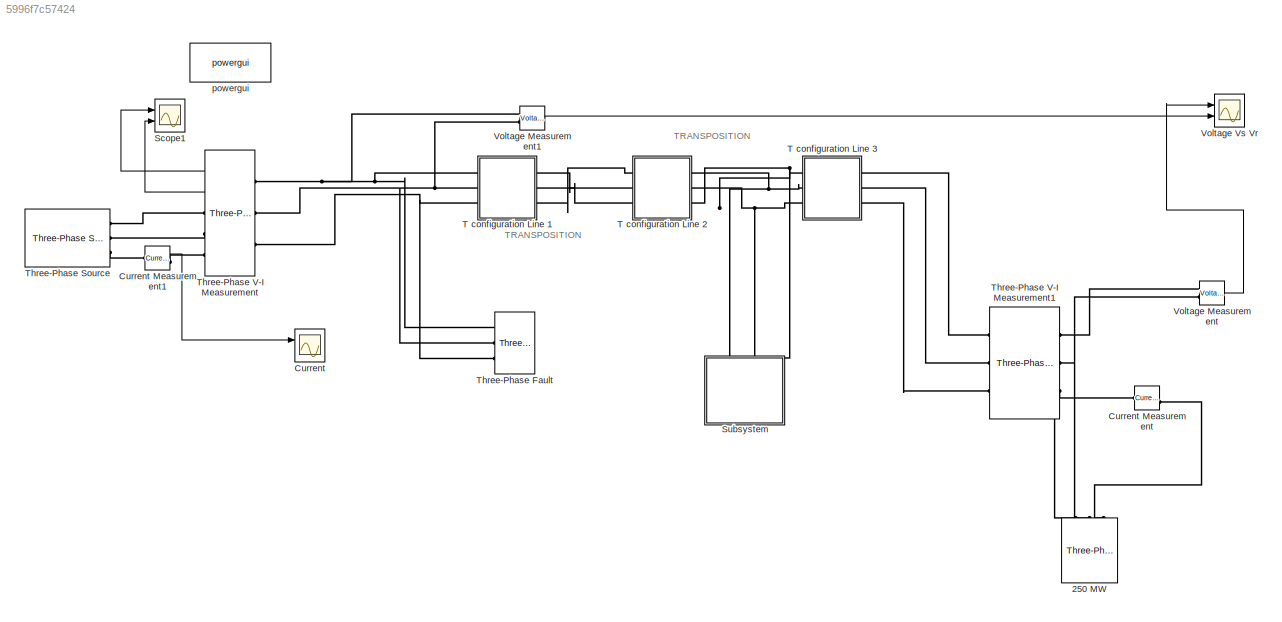
MODEL slx_5996f7c57424
KIND model
CONFIG AbsTol = auto
CONFIG EnableMultiTasking = off
CONFIG FixedStep = auto
CONFIG MaxStep = auto
CONFIG MinStep = auto
CONFIG RelTol = 1e-3
CONFIG SampleTimeConstraint = Unconstrained
CONFIG Solver = VariableStepAuto
CONFIG SolverName = VariableStepAuto
CONFIG StartTime = 0.0
CONFIG StopTime = 1.5
BLOCK [Reference] 250 MW  REF=powerlib/Elements/Three-Phase
Series RLC Load
  AttributesFormatString = \n
  Ports = [0, 0, 0, 0, 0, 3]
  SourceBlock = powerlib/Elements/Three-Phase\nSeries RLC Load
  SourceProductBaseCode = PS
  SourceProductName = Simscape Electrical
  SourceType = Three-Phase Series RLC Load
BLOCK [Scope] Current 
  Floating = off
  NumInputPorts = 2
  Ports = [2]
  ScopeSpecificationString = Simulink.scopes.TimeScopeBlockCfg('CurrentConfiguration', extmgr.ConfigurationSet(extmgr.Configuration('Core','General UI',true),extmgr.Configuration('Core','Source UI',true),extmgr.Configuration('Sources','WiredSimulink',true,'DataLoggingVariableName','ScopeData2'),extmgr.Configuration('Visuals','Time Domain',true,'SerializedDisplays',{struct('MinYLimReal','-663.16166','MaxYLimReal','663.16302','...<+1514ch>
BLOCK [Reference] Current Measurement  REF=powerlib/Measurements/Current Measurement
  Ports = [0, 1, 0, 0, 0, 1, 1]
  SourceBlock = powerlib/Measurements/Current Measurement
  SourceProductBaseCode = PS
  SourceProductName = Simscape Electrical
  SourceType = Current Measurement
  UserDataPersistent = on
BLOCK [Reference] Current Measurement1  REF=powerlib/Measurements/Current Measurement
  Ports = [0, 1, 0, 0, 0, 1, 1]
  SourceBlock = powerlib/Measurements/Current Measurement
  SourceProductBaseCode = PS
  SourceProductName = Simscape Electrical
  SourceType = Current Measurement
  UserDataPersistent = on
BLOCK [Scope] Scope1
  Floating = off
  NumInputPorts = 2
  Ports = [2]
  ScopeSpecificationString = Simulink.scopes.TimeScopeBlockCfg('CurrentConfiguration', extmgr.ConfigurationSet(extmgr.Configuration('Core','General UI',true),extmgr.Configuration('Core','Source UI',true),extmgr.Configuration('Sources','WiredSimulink',true,'DataLoggingVariableName','ScopeData1'),extmgr.Configuration('Visuals','Time Domain',true,'SerializedDisplays',{struct('MinYLimReal','-93438.31046','MaxYLimReal','93198.1279...<+1697ch>
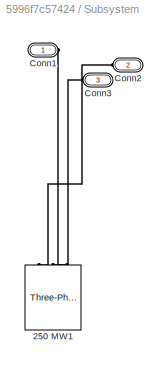
BLOCK [SubSystem] Subsystem
  Ports = [0, 0, 0, 0, 0, 3]
  RequestExecContextInheritance = off
BLOCK [Reference] Subsystem/250 MW1  REF=powerlib/Elements/Three-Phase
Series RLC Load
  AttributesFormatString = \n
  Ports = [0, 0, 0, 0, 0, 3]
  SourceBlock = powerlib/Elements/Three-Phase\nSeries RLC Load
  SourceProductBaseCode = PS
  SourceProductName = Simscape Electrical
  SourceType = Three-Phase Series RLC Load
BLOCK [PMIOPort] Subsystem/Conn1
  Side = Left
BLOCK [PMIOPort] Subsystem/Conn2
  Port = 2
  Side = Left
BLOCK [PMIOPort] Subsystem/Conn3
  Port = 3
  Side = Left
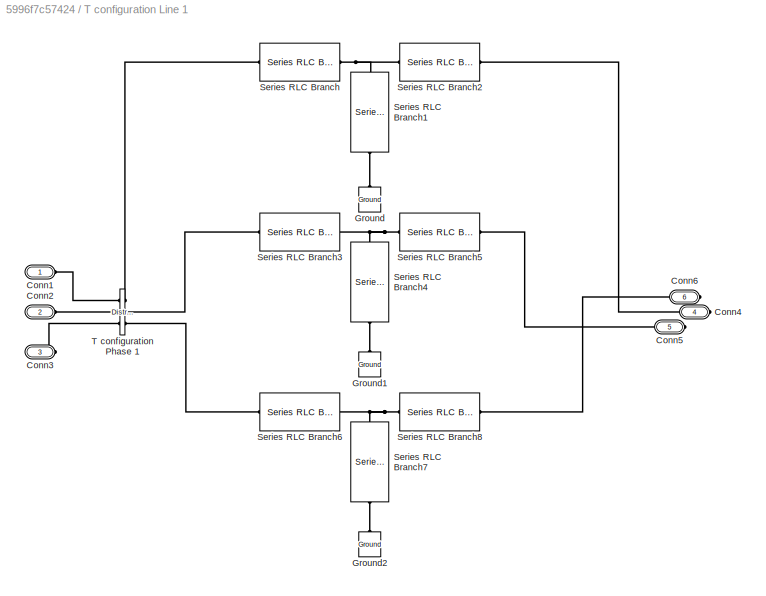
BLOCK [SubSystem] T configuration Line 1
  Ports = [0, 0, 0, 0, 0, 3, 3]
  RequestExecContextInheritance = off
BLOCK [PMIOPort] T configuration Line 1/Conn1
  Side = Left
BLOCK [PMIOPort] T configuration Line 1/Conn2
  Port = 2
  Side = Left
BLOCK [PMIOPort] T configuration Line 1/Conn3
  Port = 3
  Side = Left
BLOCK [PMIOPort] T configuration Line 1/Conn4
  Port = 4
  Side = Right
BLOCK [PMIOPort] T configuration Line 1/Conn5
  Port = 5
  Side = Right
BLOCK [PMIOPort] T configuration Line 1/Conn6
  Port = 6
  Side = Right
BLOCK [Reference] T configuration Line 1/Ground  REF=powerlib/Elements/Ground
  Ports = [0, 0, 0, 0, 0, 1]
  SourceBlock = powerlib/Elements/Ground
  SourceProductBaseCode = PS
  SourceProductName = Simscape Electrical
  SourceType = Ground
BLOCK [Reference] T configuration Line 1/Ground1  REF=powerlib/Elements/Ground
  Ports = [0, 0, 0, 0, 0, 1]
  SourceBlock = powerlib/Elements/Ground
  SourceProductBaseCode = PS
  SourceProductName = Simscape Electrical
  SourceType = Ground
BLOCK [Reference] T configuration Line 1/Ground2  REF=powerlib/Elements/Ground
  Ports = [0, 0, 0, 0, 0, 1]
  SourceBlock = powerlib/Elements/Ground
  SourceProductBaseCode = PS
  SourceProductName = Simscape Electrical
  SourceType = Ground
BLOCK [Reference] T configuration Line 1/Series RLC Branch  REF=powerlib/Elements/Series RLC Branch
  Ports = [0, 0, 0, 0, 0, 1, 1]
  SourceBlock = powerlib/Elements/Series RLC Branch
  SourceProductBaseCode = PS
  SourceProductName = Simscape Electrical
  SourceType = Series RLC Branch
BLOCK [Reference] T configuration Line 1/Series RLC Branch1  REF=powerlib/Elements/Series RLC Branch
  Ports = [0, 0, 0, 0, 0, 1, 1]
  SourceBlock = powerlib/Elements/Series RLC Branch
  SourceProductBaseCode = PS
  SourceProductName = Simscape Electrical
  SourceType = Series RLC Branch
BLOCK [Reference] T configuration Line 1/Series RLC Branch2  REF=powerlib/Elements/Series RLC Branch
  Ports = [0, 0, 0, 0, 0, 1, 1]
  SourceBlock = powerlib/Elements/Series RLC Branch
  SourceProductBaseCode = PS
  SourceProductName = Simscape Electrical
  SourceType = Series RLC Branch
BLOCK [Reference] T configuration Line 1/Series RLC Branch3  REF=powerlib/Elements/Series RLC Branch
  Ports = [0, 0, 0, 0, 0, 1, 1]
  SourceBlock = powerlib/Elements/Series RLC Branch
  SourceProductBaseCode = PS
  SourceProductName = Simscape Electrical
  SourceType = Series RLC Branch
BLOCK [Reference] T configuration Line 1/Series RLC Branch4  REF=powerlib/Elements/Series RLC Branch
  Ports = [0, 0, 0, 0, 0, 1, 1]
  SourceBlock = powerlib/Elements/Series RLC Branch
  SourceProductBaseCode = PS
  SourceProductName = Simscape Electrical
  SourceType = Series RLC Branch
BLOCK [Reference] T configuration Line 1/Series RLC Branch5  REF=powerlib/Elements/Series RLC Branch
  Ports = [0, 0, 0, 0, 0, 1, 1]
  SourceBlock = powerlib/Elements/Series RLC Branch
  SourceProductBaseCode = PS
  SourceProductName = Simscape Electrical
  SourceType = Series RLC Branch
BLOCK [Reference] T configuration Line 1/Series RLC Branch6  REF=powerlib/Elements/Series RLC Branch
  Ports = [0, 0, 0, 0, 0, 1, 1]
  SourceBlock = powerlib/Elements/Series RLC Branch
  SourceProductBaseCode = PS
  SourceProductName = Simscape Electrical
  SourceType = Series RLC Branch
BLOCK [Reference] T configuration Line 1/Series RLC Branch7  REF=powerlib/Elements/Series RLC Branch
  Ports = [0, 0, 0, 0, 0, 1, 1]
  SourceBlock = powerlib/Elements/Series RLC Branch
  SourceProductBaseCode = PS
  SourceProductName = Simscape Electrical
  SourceType = Series RLC Branch
BLOCK [Reference] T configuration Line 1/Series RLC Branch8  REF=powerlib/Elements/Series RLC Branch
  Ports = [0, 0, 0, 0, 0, 1, 1]
  SourceBlock = powerlib/Elements/Series RLC Branch
  SourceProductBaseCode = PS
  SourceProductName = Simscape Electrical
  SourceType = Series RLC Branch
BLOCK [Reference] T configuration Line 1/T configuration Phase 1  REF=powerlib/Elements/Distributed Parameters Line
  Ports = [0, 0, 0, 0, 0, 3, 3]
  SourceBlock = powerlib/Elements/Distributed Parameters Line
  SourceProductBaseCode = PS
  SourceProductName = Simscape Electrical
  SourceType = Distributed Parameters Line
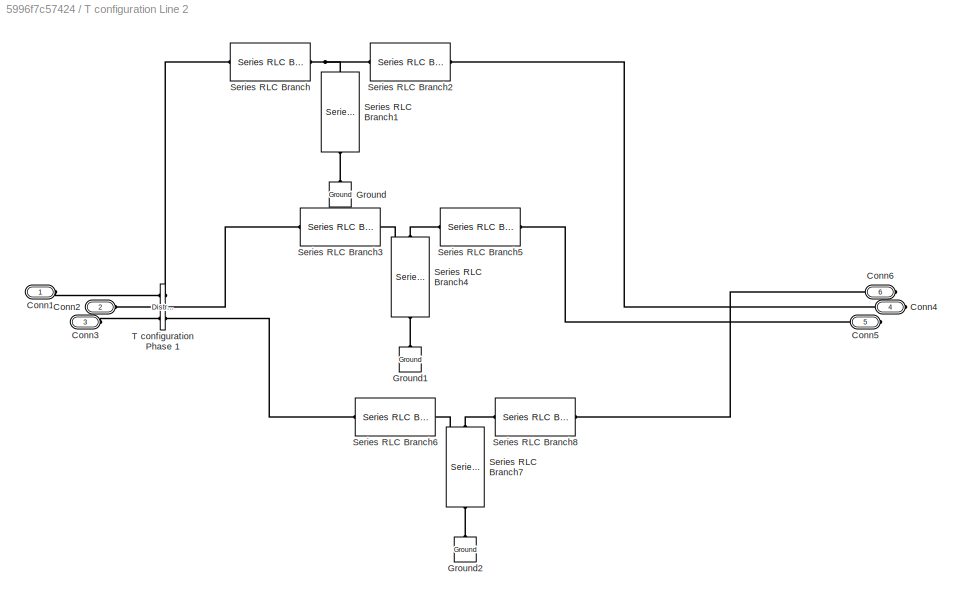
BLOCK [SubSystem] T configuration Line 2
  Ports = [0, 0, 0, 0, 0, 3, 3]
  RequestExecContextInheritance = off
BLOCK [PMIOPort] T configuration Line 2/Conn1
  Side = Left
BLOCK [PMIOPort] T configuration Line 2/Conn2
  Port = 2
  Side = Left
BLOCK [PMIOPort] T configuration Line 2/Conn3
  Port = 3
  Side = Left
BLOCK [PMIOPort] T configuration Line 2/Conn4
  Port = 4
  Side = Right
BLOCK [PMIOPort] T configuration Line 2/Conn5
  Port = 5
  Side = Right
BLOCK [PMIOPort] T configuration Line 2/Conn6
  Port = 6
  Side = Right
BLOCK [Reference] T configuration Line 2/Ground  REF=powerlib/Elements/Ground
  Ports = [0, 0, 0, 0, 0, 1]
  SourceBlock = powerlib/Elements/Ground
  SourceProductBaseCode = PS
  SourceProductName = Simscape Electrical
  SourceType = Ground
BLOCK [Reference] T configuration Line 2/Ground1  REF=powerlib/Elements/Ground
  Ports = [0, 0, 0, 0, 0, 1]
  SourceBlock = powerlib/Elements/Ground
  SourceProductBaseCode = PS
  SourceProductName = Simscape Electrical
  SourceType = Ground
BLOCK [Reference] T configuration Line 2/Ground2  REF=powerlib/Elements/Ground
  Ports = [0, 0, 0, 0, 0, 1]
  SourceBlock = powerlib/Elements/Ground
  SourceProductBaseCode = PS
  SourceProductName = Simscape Electrical
  SourceType = Ground
BLOCK [Reference] T configuration Line 2/Series RLC Branch  REF=powerlib/Elements/Series RLC Branch
  Ports = [0, 0, 0, 0, 0, 1, 1]
  SourceBlock = powerlib/Elements/Series RLC Branch
  SourceProductBaseCode = PS
  SourceProductName = Simscape Electrical
  SourceType = Series RLC Branch
BLOCK [Reference] T configuration Line 2/Series RLC Branch1  REF=powerlib/Elements/Series RLC Branch
  Ports = [0, 0, 0, 0, 0, 1, 1]
  SourceBlock = powerlib/Elements/Series RLC Branch
  SourceProductBaseCode = PS
  SourceProductName = Simscape Electrical
  SourceType = Series RLC Branch
BLOCK [Reference] T configuration Line 2/Series RLC Branch2  REF=powerlib/Elements/Series RLC Branch
  Ports = [0, 0, 0, 0, 0, 1, 1]
  SourceBlock = powerlib/Elements/Series RLC Branch
  SourceProductBaseCode = PS
  SourceProductName = Simscape Electrical
  SourceType = Series RLC Branch
BLOCK [Reference] T configuration Line 2/Series RLC Branch3  REF=powerlib/Elements/Series RLC Branch
  Ports = [0, 0, 0, 0, 0, 1, 1]
  SourceBlock = powerlib/Elements/Series RLC Branch
  SourceProductBaseCode = PS
  SourceProductName = Simscape Electrical
  SourceType = Series RLC Branch
BLOCK [Reference] T configuration Line 2/Series RLC Branch4  REF=powerlib/Elements/Series RLC Branch
  Ports = [0, 0, 0, 0, 0, 1, 1]
  SourceBlock = powerlib/Elements/Series RLC Branch
  SourceProductBaseCode = PS
  SourceProductName = Simscape Electrical
  SourceType = Series RLC Branch
BLOCK [Reference] T configuration Line 2/Series RLC Branch5  REF=powerlib/Elements/Series RLC Branch
  Ports = [0, 0, 0, 0, 0, 1, 1]
  SourceBlock = powerlib/Elements/Series RLC Branch
  SourceProductBaseCode = PS
  SourceProductName = Simscape Electrical
  SourceType = Series RLC Branch
BLOCK [Reference] T configuration Line 2/Series RLC Branch6  REF=powerlib/Elements/Series RLC Branch
  Ports = [0, 0, 0, 0, 0, 1, 1]
  SourceBlock = powerlib/Elements/Series RLC Branch
  SourceProductBaseCode = PS
  SourceProductName = Simscape Electrical
  SourceType = Series RLC Branch
BLOCK [Reference] T configuration Line 2/Series RLC Branch7  REF=powerlib/Elements/Series RLC Branch
  Ports = [0, 0, 0, 0, 0, 1, 1]
  SourceBlock = powerlib/Elements/Series RLC Branch
  SourceProductBaseCode = PS
  SourceProductName = Simscape Electrical
  SourceType = Series RLC Branch
BLOCK [Reference] T configuration Line 2/Series RLC Branch8  REF=powerlib/Elements/Series RLC Branch
  Ports = [0, 0, 0, 0, 0, 1, 1]
  SourceBlock = powerlib/Elements/Series RLC Branch
  SourceProductBaseCode = PS
  SourceProductName = Simscape Electrical
  SourceType = Series RLC Branch
BLOCK [Reference] T configuration Line 2/T configuration Phase 1  REF=powerlib/Elements/Distributed Parameters Line
  Ports = [0, 0, 0, 0, 0, 3, 3]
  SourceBlock = powerlib/Elements/Distributed Parameters Line
  SourceProductBaseCode = PS
  SourceProductName = Simscape Electrical
  SourceType = Distributed Parameters Line
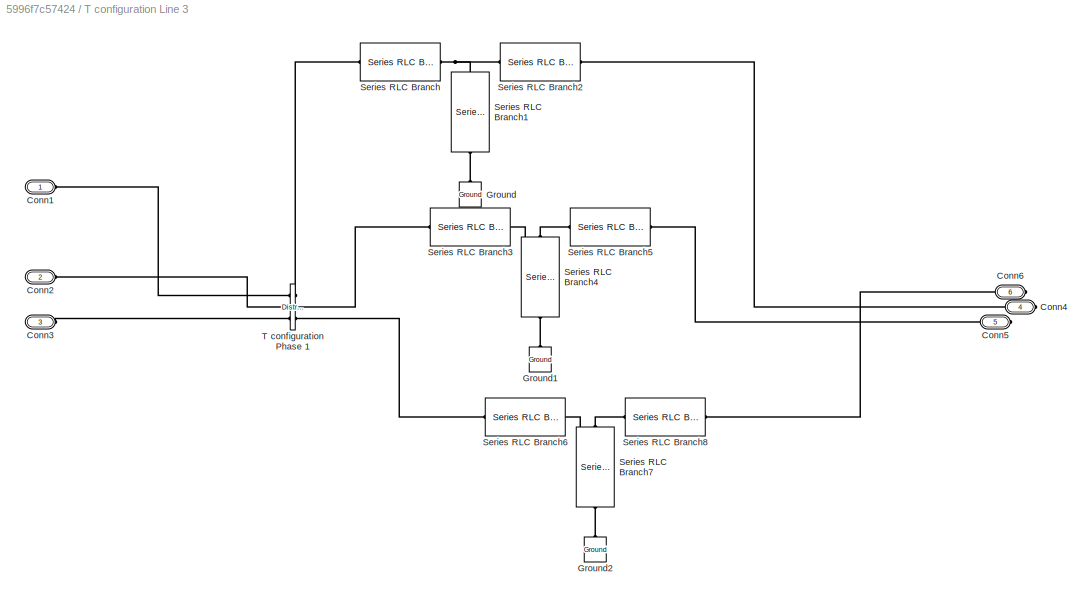
BLOCK [SubSystem] T configuration Line 3
  Ports = [0, 0, 0, 0, 0, 3, 3]
  RequestExecContextInheritance = off
BLOCK [PMIOPort] T configuration Line 3/Conn1
  Side = Left
BLOCK [PMIOPort] T configuration Line 3/Conn2
  Port = 2
  Side = Left
BLOCK [PMIOPort] T configuration Line 3/Conn3
  Port = 3
  Side = Left
BLOCK [PMIOPort] T configuration Line 3/Conn4
  Port = 4
  Side = Right
BLOCK [PMIOPort] T configuration Line 3/Conn5
  Port = 5
  Side = Right
BLOCK [PMIOPort] T configuration Line 3/Conn6
  Port = 6
  Side = Right
BLOCK [Reference] T configuration Line 3/Ground  REF=powerlib/Elements/Ground
  Ports = [0, 0, 0, 0, 0, 1]
  SourceBlock = powerlib/Elements/Ground
  SourceProductBaseCode = PS
  SourceProductName = Simscape Electrical
  SourceType = Ground
BLOCK [Reference] T configuration Line 3/Ground1  REF=powerlib/Elements/Ground
  Ports = [0, 0, 0, 0, 0, 1]
  SourceBlock = powerlib/Elements/Ground
  SourceProductBaseCode = PS
  SourceProductName = Simscape Electrical
  SourceType = Ground
BLOCK [Reference] T configuration Line 3/Ground2  REF=powerlib/Elements/Ground
  Ports = [0, 0, 0, 0, 0, 1]
  SourceBlock = powerlib/Elements/Ground
  SourceProductBaseCode = PS
  SourceProductName = Simscape Electrical
  SourceType = Ground
BLOCK [Reference] T configuration Line 3/Series RLC Branch  REF=powerlib/Elements/Series RLC Branch
  Ports = [0, 0, 0, 0, 0, 1, 1]
  SourceBlock = powerlib/Elements/Series RLC Branch
  SourceProductBaseCode = PS
  SourceProductName = Simscape Electrical
  SourceType = Series RLC Branch
BLOCK [Reference] T configuration Line 3/Series RLC Branch1  REF=powerlib/Elements/Series RLC Branch
  Ports = [0, 0, 0, 0, 0, 1, 1]
  SourceBlock = powerlib/Elements/Series RLC Branch
  SourceProductBaseCode = PS
  SourceProductName = Simscape Electrical
  SourceType = Series RLC Branch
BLOCK [Reference] T configuration Line 3/Series RLC Branch2  REF=powerlib/Elements/Series RLC Branch
  Ports = [0, 0, 0, 0, 0, 1, 1]
  SourceBlock = powerlib/Elements/Series RLC Branch
  SourceProductBaseCode = PS
  SourceProductName = Simscape Electrical
  SourceType = Series RLC Branch
BLOCK [Reference] T configuration Line 3/Series RLC Branch3  REF=powerlib/Elements/Series RLC Branch
  Ports = [0, 0, 0, 0, 0, 1, 1]
  SourceBlock = powerlib/Elements/Series RLC Branch
  SourceProductBaseCode = PS
  SourceProductName = Simscape Electrical
  SourceType = Series RLC Branch
BLOCK [Reference] T configuration Line 3/Series RLC Branch4  REF=powerlib/Elements/Series RLC Branch
  Ports = [0, 0, 0, 0, 0, 1, 1]
  SourceBlock = powerlib/Elements/Series RLC Branch
  SourceProductBaseCode = PS
  SourceProductName = Simscape Electrical
  SourceType = Series RLC Branch
BLOCK [Reference] T configuration Line 3/Series RLC Branch5  REF=powerlib/Elements/Series RLC Branch
  Ports = [0, 0, 0, 0, 0, 1, 1]
  SourceBlock = powerlib/Elements/Series RLC Branch
  SourceProductBaseCode = PS
  SourceProductName = Simscape Electrical
  SourceType = Series RLC Branch
BLOCK [Reference] T configuration Line 3/Series RLC Branch6  REF=powerlib/Elements/Series RLC Branch
  Ports = [0, 0, 0, 0, 0, 1, 1]
  SourceBlock = powerlib/Elements/Series RLC Branch
  SourceProductBaseCode = PS
  SourceProductName = Simscape Electrical
  SourceType = Series RLC Branch
BLOCK [Reference] T configuration Line 3/Series RLC Branch7  REF=powerlib/Elements/Series RLC Branch
  Ports = [0, 0, 0, 0, 0, 1, 1]
  SourceBlock = powerlib/Elements/Series RLC Branch
  SourceProductBaseCode = PS
  SourceProductName = Simscape Electrical
  SourceType = Series RLC Branch
BLOCK [Reference] T configuration Line 3/Series RLC Branch8  REF=powerlib/Elements/Series RLC Branch
  Ports = [0, 0, 0, 0, 0, 1, 1]
  SourceBlock = powerlib/Elements/Series RLC Branch
  SourceProductBaseCode = PS
  SourceProductName = Simscape Electrical
  SourceType = Series RLC Branch
BLOCK [Reference] T configuration Line 3/T configuration Phase 1  REF=powerlib/Elements/Distributed Parameters Line
  Ports = [0, 0, 0, 0, 0, 3, 3]
  SourceBlock = powerlib/Elements/Distributed Parameters Line
  SourceProductBaseCode = PS
  SourceProductName = Simscape Electrical
  SourceType = Distributed Parameters Line
BLOCK [Reference] Three-Phase Fault   REF=powerlib/Elements/Three-Phase Fault
  Ports = [0, 0, 0, 0, 0, 3]
  SourceBlock = powerlib/Elements/Three-Phase Fault
  SourceProductBaseCode = PS
  SourceProductName = Simscape Electrical
  SourceType = Three-Phase Fault
BLOCK [Reference] Three-Phase Source  REF=powerlib/Electrical
Sources/Three-Phase Source
  Ports = [0, 0, 0, 0, 0, 0, 3]
  SourceBlock = powerlib/Electrical\nSources/Three-Phase Source
  SourceProductBaseCode = PS
  SourceProductName = Simscape Electrical
  SourceType = Three-Phase Source
BLOCK [Reference] Three-Phase V-I Measurement  REF=powerlib/Measurements/Three-Phase
V-I Measurement
  Ports = [0, 2, 0, 0, 0, 3, 3]
  SourceBlock = powerlib/Measurements/Three-Phase\nV-I Measurement
  SourceProductBaseCode = PS
  SourceProductName = Simscape Electrical
  SourceType = Three-Phase VI Measurement
BLOCK [Reference] Three-Phase V-I Measurement1  REF=powerlib/Measurements/Three-Phase
V-I Measurement
  Ports = [0, 0, 0, 0, 0, 3, 3]
  SourceBlock = powerlib/Measurements/Three-Phase\nV-I Measurement
  SourceProductBaseCode = PS
  SourceProductName = Simscape Electrical
  SourceType = Three-Phase VI Measurement
BLOCK [Reference] Voltage Measurement  REF=powerlib/Measurements/Voltage Measurement
  Ports = [0, 1, 0, 0, 0, 2]
  SourceBlock = powerlib/Measurements/Voltage Measurement
  SourceProductBaseCode = PS
  SourceProductName = Simscape Electrical
  SourceType = Voltage Measurement
  UserDataPersistent = on
BLOCK [Reference] Voltage Measurement1  REF=powerlib/Measurements/Voltage Measurement
  Ports = [0, 1, 0, 0, 0, 2]
  SourceBlock = powerlib/Measurements/Voltage Measurement
  SourceProductBaseCode = PS
  SourceProductName = Simscape Electrical
  SourceType = Voltage Measurement
  UserDataPersistent = on
BLOCK [Scope] Voltage Vs Vr
  Floating = off
  NumInputPorts = 2
  Ports = [2]
  ScopeSpecificationString = Simulink.scopes.TimeScopeBlockCfg('CurrentConfiguration', extmgr.ConfigurationSet(extmgr.Configuration('Core','General UI',true),extmgr.Configuration('Core','Source UI',true),extmgr.Configuration('Sources','WiredSimulink',true,'DataLoggingVariableName','ScopeData1'),extmgr.Configuration('Visuals','Time Domain',true,'SerializedDisplays',{struct('MinYLimReal','-132166.18519','MaxYLimReal','132166.95...<+1826ch>
BLOCK [Reference] powergui  REF=powerlib/powergui
  Ports = []
  Priority = 1
  SourceBlock = powerlib/powergui
  SourceProductBaseCode = PS
  SourceProductName = Simscape Electrical
  SourceType = PSB option menu block
ANNOTATION (root): TRANSPOSITION
LINE Current Measurement1:1 -> Current :1
LINE Three-Phase V-I Measurement:1 -> Scope1:1
LINE Three-Phase V-I Measurement:2 -> Scope1:2
LINE Voltage Measurement1:1 -> Voltage Vs Vr:2
LINE Voltage Measurement:1 -> Voltage Vs Vr:1
PNET net1: 250 MW:LConn1 -- Three-Phase V-I Measurement1:RConn1 -- Voltage Measurement:LConn1
PNET net2: 250 MW:LConn2 -- Three-Phase V-I Measurement1:RConn2 -- Voltage Measurement:LConn2
PLINE 250 MW:LConn3 -- Current Measurement:RConn1
PLINE Current Measurement1:LConn1 -- Three-Phase Source:RConn3
PLINE Current Measurement1:RConn1 -- Three-Phase V-I Measurement:RConn3
PLINE Current Measurement:LConn1 -- Three-Phase V-I Measurement1:RConn3
PLINE Subsystem/250 MW1:LConn1 -- Subsystem/Conn2:RConn1
PLINE Subsystem/250 MW1:LConn2 -- Subsystem/Conn3:RConn1
PLINE Subsystem/250 MW1:LConn3 -- Subsystem/Conn1:RConn1
PNET net3: Subsystem:LConn1 -- T configuration Line 2:RConn3 -- T configuration Line 3:LConn1
PNET net4: Subsystem:LConn2 -- T configuration Line 2:RConn1 -- T configuration Line 3:LConn2
PNET net5: Subsystem:LConn3 -- T configuration Line 2:RConn2 -- T configuration Line 3:LConn3
PLINE T configuration Line 1/Conn1:RConn1 -- T configuration Line 1/T configuration Phase 1:LConn1
PLINE T configuration Line 1/Conn2:RConn1 -- T configuration Line 1/T configuration Phase 1:LConn2
PLINE T configuration Line 1/Conn3:RConn1 -- T configuration Line 1/T configuration Phase 1:LConn3
PLINE T configuration Line 1/Conn4:RConn1 -- T configuration Line 1/Series RLC Branch2:RConn1
PLINE T configuration Line 1/Conn5:RConn1 -- T configuration Line 1/Series RLC Branch5:RConn1
PLINE T configuration Line 1/Conn6:RConn1 -- T configuration Line 1/Series RLC Branch8:RConn1
PLINE T configuration Line 1/Ground1:LConn1 -- T configuration Line 1/Series RLC Branch4:RConn1
PLINE T configuration Line 1/Ground2:LConn1 -- T configuration Line 1/Series RLC Branch7:RConn1
PLINE T configuration Line 1/Ground:LConn1 -- T configuration Line 1/Series RLC Branch1:RConn1
PNET net6: T configuration Line 1/Series RLC Branch1:LConn1 -- T configuration Line 1/Series RLC Branch2:LConn1 -- T configuration Line 1/Series RLC Branch:RConn1
PLINE T configuration Line 1/Series RLC Branch3:LConn1 -- T configuration Line 1/T configuration Phase 1:RConn2
PNET net7: T configuration Line 1/Series RLC Branch3:RConn1 -- T configuration Line 1/Series RLC Branch4:LConn1 -- T configuration Line 1/Series RLC Branch5:LConn1
PLINE T configuration Line 1/Series RLC Branch6:LConn1 -- T configuration Line 1/T configuration Phase 1:RConn3
PNET net8: T configuration Line 1/Series RLC Branch6:RConn1 -- T configuration Line 1/Series RLC Branch7:LConn1 -- T configuration Line 1/Series RLC Branch8:LConn1
PLINE T configuration Line 1/Series RLC Branch:LConn1 -- T configuration Line 1/T configuration Phase 1:RConn1
PNET net9: T configuration Line 1:LConn1 -- Three-Phase Fault :LConn1 -- Three-Phase V-I Measurement:LConn1 -- Voltage Measurement1:LConn1
PNET net10: T configuration Line 1:LConn2 -- Three-Phase Fault :LConn2 -- Three-Phase V-I Measurement:LConn2 -- Voltage Measurement1:LConn2
PNET net11: T configuration Line 1:LConn3 -- Three-Phase Fault :LConn3 -- Three-Phase V-I Measurement:LConn3
PLINE T configuration Line 1:RConn1 -- T configuration Line 2:LConn2
PLINE T configuration Line 1:RConn2 -- T configuration Line 2:LConn3
PLINE T configuration Line 1:RConn3 -- T configuration Line 2:LConn1
PLINE T configuration Line 2/Conn1:RConn1 -- T configuration Line 2/T configuration Phase 1:LConn1
PLINE T configuration Line 2/Conn2:RConn1 -- T configuration Line 2/T configuration Phase 1:LConn2
PLINE T configuration Line 2/Conn3:RConn1 -- T configuration Line 2/T configuration Phase 1:LConn3
PLINE T configuration Line 2/Conn4:RConn1 -- T configuration Line 2/Series RLC Branch2:RConn1
PLINE T configuration Line 2/Conn5:RConn1 -- T configuration Line 2/Series RLC Branch5:RConn1
PLINE T configuration Line 2/Conn6:RConn1 -- T configuration Line 2/Series RLC Branch8:RConn1
PLINE T configuration Line 2/Ground1:LConn1 -- T configuration Line 2/Series RLC Branch4:RConn1
PLINE T configuration Line 2/Ground2:LConn1 -- T configuration Line 2/Series RLC Branch7:RConn1
PLINE T configuration Line 2/Ground:LConn1 -- T configuration Line 2/Series RLC Branch1:RConn1
PNET net12: T configuration Line 2/Series RLC Branch1:LConn1 -- T configuration Line 2/Series RLC Branch2:LConn1 -- T configuration Line 2/Series RLC Branch:RConn1
PLINE T configuration Line 2/Series RLC Branch3:LConn1 -- T configuration Line 2/T configuration Phase 1:RConn2
PNET net13: T configuration Line 2/Series RLC Branch3:RConn1 -- T configuration Line 2/Series RLC Branch4:LConn1 -- T configuration Line 2/Series RLC Branch5:LConn1
PLINE T configuration Line 2/Series RLC Branch6:LConn1 -- T configuration Line 2/T configuration Phase 1:RConn3
PNET net14: T configuration Line 2/Series RLC Branch6:RConn1 -- T configuration Line 2/Series RLC Branch7:LConn1 -- T configuration Line 2/Series RLC Branch8:LConn1
PLINE T configuration Line 2/Series RLC Branch:LConn1 -- T configuration Line 2/T configuration Phase 1:RConn1
PLINE T configuration Line 3/Conn1:RConn1 -- T configuration Line 3/T configuration Phase 1:LConn1
PLINE T configuration Line 3/Conn2:RConn1 -- T configuration Line 3/T configuration Phase 1:LConn2
PLINE T configuration Line 3/Conn3:RConn1 -- T configuration Line 3/T configuration Phase 1:LConn3
PLINE T configuration Line 3/Conn4:RConn1 -- T configuration Line 3/Series RLC Branch2:RConn1
PLINE T configuration Line 3/Conn5:RConn1 -- T configuration Line 3/Series RLC Branch5:RConn1
PLINE T configuration Line 3/Conn6:RConn1 -- T configuration Line 3/Series RLC Branch8:RConn1
PLINE T configuration Line 3/Ground1:LConn1 -- T configuration Line 3/Series RLC Branch4:RConn1
PLINE T configuration Line 3/Ground2:LConn1 -- T configuration Line 3/Series RLC Branch7:RConn1
PLINE T configuration Line 3/Ground:LConn1 -- T configuration Line 3/Series RLC Branch1:RConn1
PNET net15: T configuration Line 3/Series RLC Branch1:LConn1 -- T configuration Line 3/Series RLC Branch2:LConn1 -- T configuration Line 3/Series RLC Branch:RConn1
PLINE T configuration Line 3/Series RLC Branch3:LConn1 -- T configuration Line 3/T configuration Phase 1:RConn2
PNET net16: T configuration Line 3/Series RLC Branch3:RConn1 -- T configuration Line 3/Series RLC Branch4:LConn1 -- T configuration Line 3/Series RLC Branch5:LConn1
PLINE T configuration Line 3/Series RLC Branch6:LConn1 -- T configuration Line 3/T configuration Phase 1:RConn3
PNET net17: T configuration Line 3/Series RLC Branch6:RConn1 -- T configuration Line 3/Series RLC Branch7:LConn1 -- T configuration Line 3/Series RLC Branch8:LConn1
PLINE T configuration Line 3/Series RLC Branch:LConn1 -- T configuration Line 3/T configuration Phase 1:RConn1
PLINE T configuration Line 3:RConn1 -- Three-Phase V-I Measurement1:LConn1
PLINE T configuration Line 3:RConn2 -- Three-Phase V-I Measurement1:LConn2
PLINE T configuration Line 3:RConn3 -- Three-Phase V-I Measurement1:LConn3
PLINE Three-Phase Source:RConn1 -- Three-Phase V-I Measurement:RConn1
PLINE Three-Phase Source:RConn2 -- Three-Phase V-I Measurement:RConn2
note: PNET lines group multi-terminal physical nets as a canonical sorted terminal list (undirected conserving connections); 2-terminal nets keep the pairwise PLINE form
